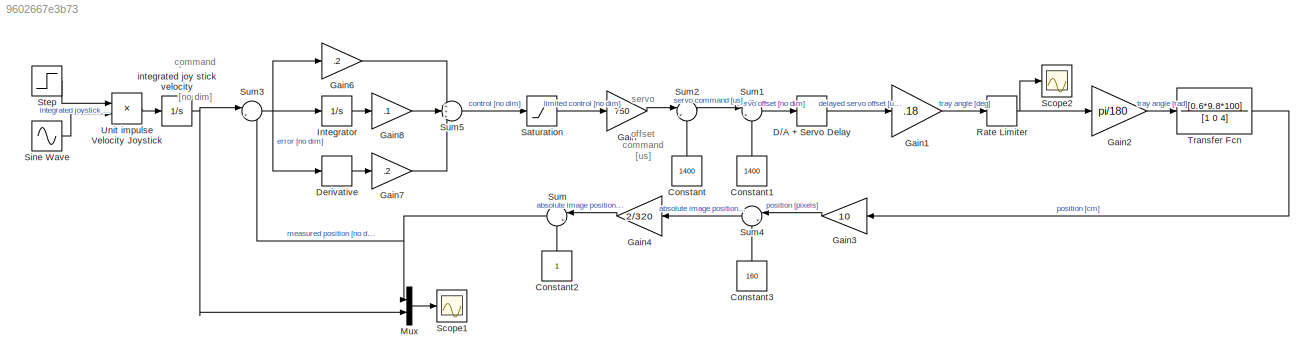
MODEL slx_9602667e3b73
KIND model
BLOCK [Constant] Constant
  Value = 1400
BLOCK [Constant] Constant1
  Value = 1400
BLOCK [Constant] Constant2
BLOCK [Constant] Constant3
  Value = 160
BLOCK [TransportDelay] D//A + Servo Delay
  DelayTime = .04
  Ports = [1, 1]
BLOCK [Derivative] Derivative
BLOCK [Gain] Gain
  Gain = 750
  OutDataTypeStr = Inherit: Inherit via internal rule
  ParamDataTypeStr = Inherit: Inherit via internal rule
  SaturateOnIntegerOverflow = off
BLOCK [Gain] Gain1
  Gain = .18
  OutDataTypeStr = Inherit: Inherit via internal rule
  ParamDataTypeStr = Inherit: Inherit via internal rule
  SaturateOnIntegerOverflow = off
BLOCK [Gain] Gain2
  Gain = pi/180
  OutDataTypeStr = Inherit: Inherit via internal rule
  ParamDataTypeStr = Inherit: Inherit via internal rule
  SaturateOnIntegerOverflow = off
BLOCK [Gain] Gain3
  Gain = 10
  OutDataTypeStr = Inherit: Inherit via internal rule
  ParamDataTypeStr = Inherit: Inherit via internal rule
  SaturateOnIntegerOverflow = off
BLOCK [Gain] Gain4
  Gain = 2/320
  OutDataTypeStr = Inherit: Inherit via internal rule
  ParamDataTypeStr = Inherit: Inherit via internal rule
  SaturateOnIntegerOverflow = off
BLOCK [Gain] Gain6
  Gain = .2
  OutDataTypeStr = Inherit: Inherit via internal rule
  ParamDataTypeStr = Inherit: Inherit via internal rule
  SaturateOnIntegerOverflow = off
BLOCK [Gain] Gain7
  Gain = .2
  OutDataTypeStr = Inherit: Inherit via internal rule
  ParamDataTypeStr = Inherit: Inherit via internal rule
  SaturateOnIntegerOverflow = off
BLOCK [Gain] Gain8
  Gain = .1
  OutDataTypeStr = Inherit: Inherit via internal rule
  ParamDataTypeStr = Inherit: Inherit via internal rule
  SaturateOnIntegerOverflow = off
BLOCK [Integrator] Integrator
  Ports = [1, 1]
BLOCK [Mux] Mux
  DisplayOption = bar
  Inputs = 2
  Ports = [2, 1]
BLOCK [RateLimiter] Rate Limiter
  FallingSlewLimit = -1000
  RisingSlewLimit = 1000
  SampleTimeMode = inherited
BLOCK [Saturate] Saturation
  InputPortMap = u0
  LowerLimit = -.25
  Ports = [1, 1]
  UpperLimit = .25
BLOCK [Scope] Scope1
  Floating = off
  LimitDataPoints = off
  NumInputPorts = 1
  Ports = [1]
  SaveName = ScopeData1
  ShowLegends = off
  TimeRange = 5
  YMax = 0.7000000000000001
  YMin = 0
  ZoomMode = yonly
BLOCK [Scope] Scope2
  Floating = off
  LimitDataPoints = off
  NumInputPorts = 1
  Ports = [1]
  ShowLegends = off
  TimeRange = 5
  YMax = 15
  YMin = -10
  ZoomMode = yonly
BLOCK [Sin] Sine Wave
  Frequency = 2
  Ports = [0, 1]
  SampleTime = 0
BLOCK [Step] Step
  SampleTime = 0
BLOCK [Sum] Sum
  IconShape = round
  InputSameDT = off
  Inputs = |+-
  OutDataTypeStr = Inherit: Inherit via internal rule
  Ports = [2, 1]
  SaturateOnIntegerOverflow = off
BLOCK [Sum] Sum1
  IconShape = round
  InputSameDT = off
  Inputs = |+-
  OutDataTypeStr = Inherit: Inherit via internal rule
  Ports = [2, 1]
  SaturateOnIntegerOverflow = off
BLOCK [Sum] Sum2
  IconShape = round
  InputSameDT = off
  Inputs = |++
  OutDataTypeStr = Inherit: Inherit via internal rule
  Ports = [2, 1]
  SaturateOnIntegerOverflow = off
BLOCK [Sum] Sum3
  IconShape = round
  InputSameDT = off
  Inputs = |+-
  OutDataTypeStr = Inherit: Inherit via internal rule
  Ports = [2, 1]
  SaturateOnIntegerOverflow = off
BLOCK [Sum] Sum4
  IconShape = round
  InputSameDT = off
  Inputs = |++
  OutDataTypeStr = Inherit: Inherit via internal rule
  Ports = [2, 1]
  SaturateOnIntegerOverflow = off
BLOCK [Sum] Sum5
  IconShape = round
  InputSameDT = off
  Inputs = +++
  OutDataTypeStr = Inherit: Inherit via internal rule
  Ports = [3, 1]
  SaturateOnIntegerOverflow = off
BLOCK [TransferFcn] Transfer Fcn
  Denominator = [1 0 4]
  Numerator = [0.6*9.8*100]
BLOCK [Product] Unit impulse Velocity Joystick
  InputSameDT = off
  OutDataTypeStr = Inherit: Inherit via internal rule
  Ports = [2, 1]
  RndMeth = Floor
  SaturateOnIntegerOverflow = off
BLOCK [Integrator] integrated joy stick velocity 
  Ports = [1, 1]
ANNOTATION (root): position command [no dim]
ANNOTATION (root): servo offset command [us]
LINE Constant1:1 -> Sum1:2
LINE Constant2:1 -> Sum:2
LINE Constant3:1 -> Sum4:2
LINE Constant:1 -> Sum2:2
LINE D//A + Servo Delay:1 -> Gain1:1
LINE Derivative:1 -> Gain7:1
LINE Gain1:1 -> Rate Limiter:1
LINE Gain2:1 -> Transfer Fcn:1
LINE Gain3:1 -> Sum4:1
LINE Gain4:1 -> Sum:1
LINE Gain6:1 -> Sum5:1
LINE Gain7:1 -> Sum5:3
LINE Gain8:1 -> Sum5:2
LINE Gain:1 -> Sum2:1
LINE Integrator:1 -> Gain8:1
LINE Mux:1 -> Scope1:1
NET Rate Limiter:1 -> Gain2:1, Scope2:1
LINE Saturation:1 -> Gain:1
LINE Sine Wave:1 -> Unit impulse Velocity Joystick:2
LINE Step:1 -> Unit impulse Velocity Joystick:1
LINE Sum1:1 -> D//A + Servo Delay:1
LINE Sum2:1 -> Sum1:1
NET Sum3:1 -> Derivative:1, Gain6:1, Integrator:1
LINE Sum4:1 -> Gain4:1
LINE Sum5:1 -> Saturation:1
NET Sum:1 -> Mux:1, Sum3:2
LINE Transfer Fcn:1 -> Gain3:1
LINE Unit impulse Velocity Joystick:1 -> integrated joy stick velocity :1
NET integrated joy stick velocity :1 -> Mux:2, Sum3:1
note: NET lines group one-source signal fan-out (src -> all destinations, sorted); 1:1 wires keep LINE
